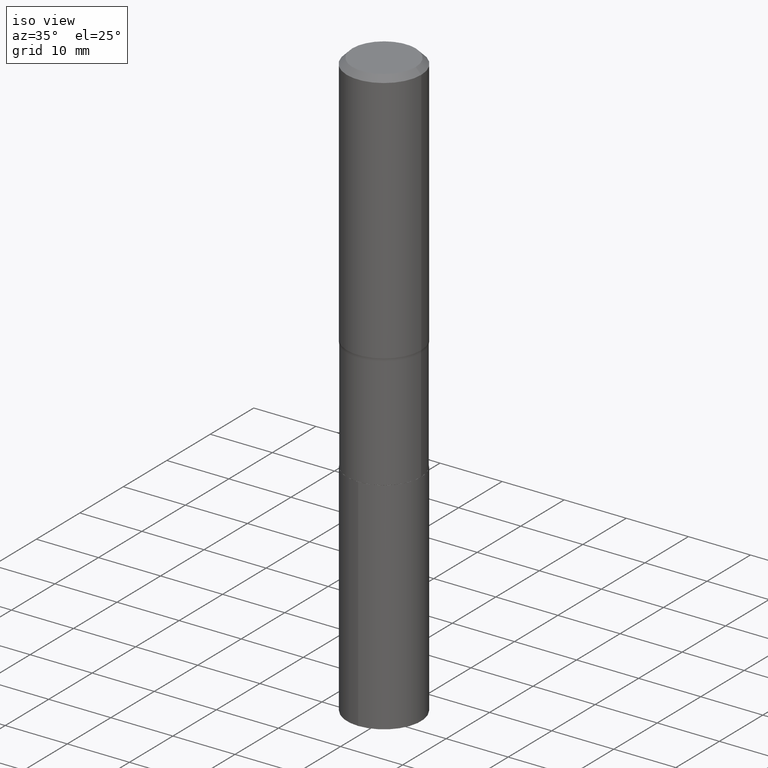
[diagram: clean part render]
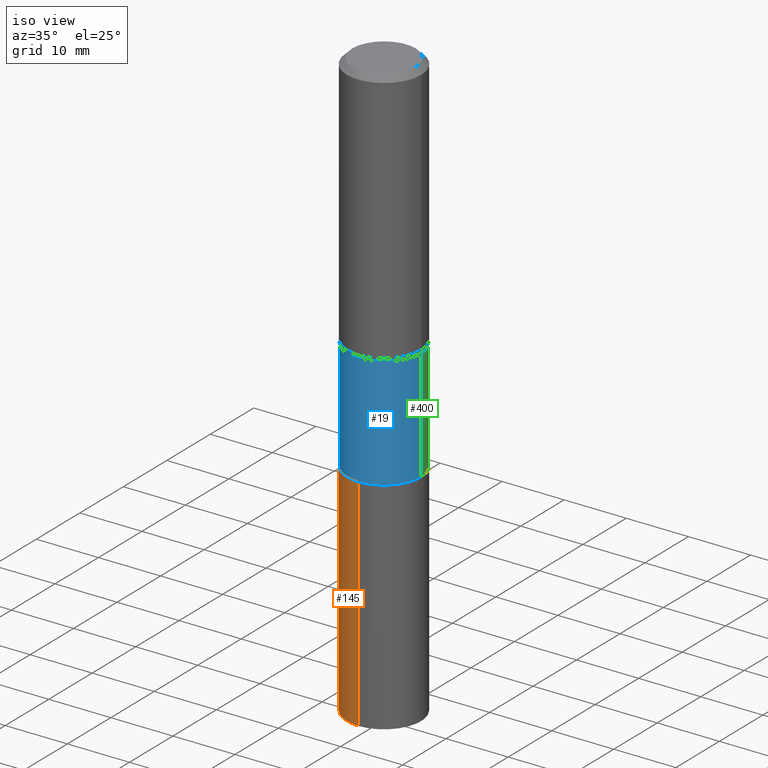
[diagram: same view with three faces highlighted in distinct colors, each labeled with its STEP entity id]
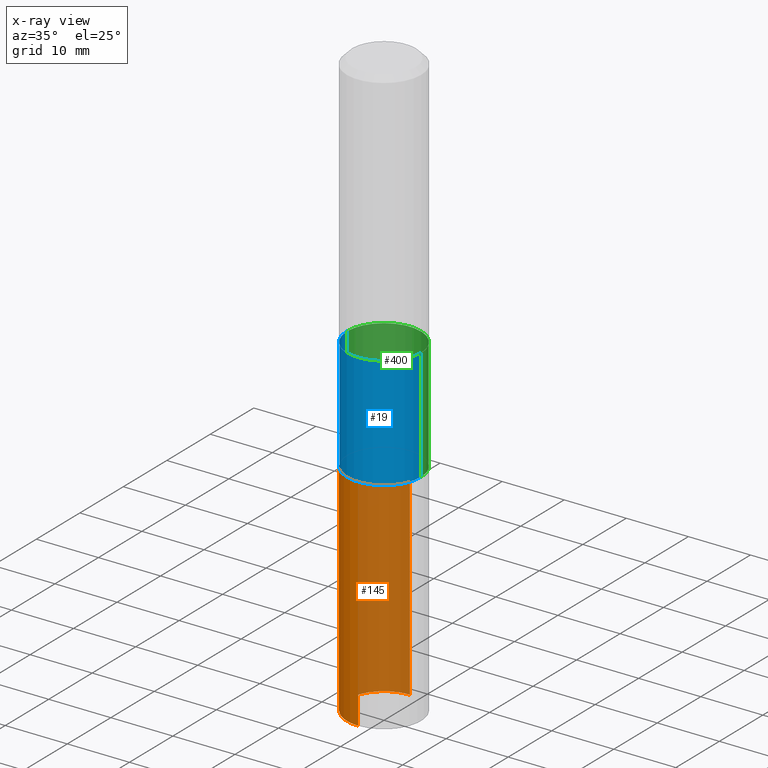
[diagram: x-ray of the same camera — body ghosted, the three highlighted faces saturated]
A machine part, iso view with three faces highlighted in distinct colors.
The next image is the same camera in x-ray (body ghosted, the three faces saturated) — at least one of them is partly hidden behind the body in this view.
Their STEP definitions:

[orange] entity #145 — the highlighted cylindrical surface (partial cylindrical patch) has radius 5.95 mm, axis along (-0, 0, 1).
#10 = VERTEX_POINT ( 'NONE', #191 ) ;
#30 = ORIENTED_EDGE ( 'NONE', *, *, #139, .T. ) ;
#37 = CARTESIAN_POINT ( 'NONE',  ( 1.664446358518108739E-15, 0.2342499999999869686, -3.740200000000001967 ) ) ;
#47 = LINE ( 'NONE', #197, #118 ) ;
#60 = ORIENTED_EDGE ( 'NONE', *, *, #87, .T. ) ;
#67 = ORIENTED_EDGE ( 'NONE', *, *, #451, .F. ) ;
#76 = CARTESIAN_POINT ( 'NONE',  ( 5.725331569040642181E-29, -8.174256110499573321E-15, -2.341200000000000170 ) ) ;
#78 = DIRECTION ( 'NONE',  ( -2.445460202630116151E-29, 3.491493659623618678E-15, 1.000000000000000000 ) ) ;
#87 = EDGE_CURVE ( 'NONE', #283, #10, #47, .T. ) ;
#112 = CARTESIAN_POINT ( 'NONE',  ( 9.146530392520179106E-29, -1.305885574031301935E-14, -3.740200000000001079 ) ) ;
#114 = DIRECTION ( 'NONE',  ( -6.982962677686265133E-15, -1.000000000000000000, 3.498631368620187579E-15 ) ) ;
#118 = VECTOR ( 'NONE', #193, 39.37007874015748143 ) ;
#119 = AXIS2_PLACEMENT_3D ( 'NONE', #76, #270, #199 ) ;
#122 = FACE_OUTER_BOUND ( 'NONE', #160, .T. ) ;
#127 = CIRCLE ( 'NONE', #247, 0.2342500000000000138 ) ;
#128 = CARTESIAN_POINT ( 'NONE',  ( 1.664446358518126094E-15, 0.2342499999999918259, -2.341200000000001058 ) ) ;
#139 = EDGE_CURVE ( 'NONE', #387, #283, #127, .T. ) ;
#145 = ADVANCED_FACE ( 'NONE', ( #122 ), #265, .T. ) ;
#160 = EDGE_LOOP ( 'NONE', ( #364, #30, #60, #67 ) ) ;
#191 = CARTESIAN_POINT ( 'NONE',  ( -1.635759007247950422E-15, -0.2342500000000081739, -2.341199999999999282 ) ) ;
#193 = DIRECTION ( 'NONE',  ( -2.445460202630116431E-29, 3.491493659623618678E-15, 1.000000000000000000 ) ) ;
#197 = CARTESIAN_POINT ( 'NONE',  ( -1.635759007247950422E-15, -0.2342500000000081739, -2.341199999999999282 ) ) ;
#199 = DIRECTION ( 'NONE',  ( -6.982962677686265133E-15, -1.000000000000000000, 3.498631368620187579E-15 ) ) ;
#201 = LINE ( 'NONE', #313, #367 ) ;
#205 = VERTEX_POINT ( 'NONE', #128 ) ;
#239 = CIRCLE ( 'NONE', #312, 0.2342500000000000138 ) ;
#247 = AXIS2_PLACEMENT_3D ( 'NONE', #112, #338, #366 ) ;
#265 = CYLINDRICAL_SURFACE ( 'NONE', #119, 0.2342500000000000138 ) ;
#270 = DIRECTION ( 'NONE',  ( -2.445460202630116151E-29, 3.491493659623618678E-15, 1.000000000000000000 ) ) ;
#280 = EDGE_CURVE ( 'NONE', #387, #205, #201, .T. ) ;
#283 = VERTEX_POINT ( 'NONE', #347 ) ;
#312 = AXIS2_PLACEMENT_3D ( 'NONE', #403, #78, #114 ) ;
#313 = CARTESIAN_POINT ( 'NONE',  ( 1.664446358518091778E-15, 0.2342499999999918259, -2.341200000000001058 ) ) ;
#338 = DIRECTION ( 'NONE',  ( -2.445460202630116151E-29, 3.491493659623618678E-15, 1.000000000000000000 ) ) ;
#347 = CARTESIAN_POINT ( 'NONE',  ( -1.635759007247916303E-15, -0.2342500000000130589, -3.740200000000000635 ) ) ;
#364 = ORIENTED_EDGE ( 'NONE', *, *, #280, .F. ) ;
#366 = DIRECTION ( 'NONE',  ( -6.982962677686265133E-15, -1.000000000000000000, 2.332420912413458386E-15 ) ) ;
#367 = VECTOR ( 'NONE', #458, 39.37007874015748143 ) ;
#387 = VERTEX_POINT ( 'NONE', #37 ) ;
#403 = CARTESIAN_POINT ( 'NONE',  ( 5.725331569040642181E-29, -8.174256110499573321E-15, -2.341200000000000170 ) ) ;
#451 = EDGE_CURVE ( 'NONE', #205, #10, #239, .T. ) ;
#458 = DIRECTION ( 'NONE',  ( -2.445460202630116431E-29, 3.491493659623618678E-15, 1.000000000000000000 ) ) ;

[blue] entity #19 — the highlighted cylindrical surface (partial cylindrical patch) has radius 5.9499 mm, axis along (-0, 0, 1).
#1 = DIRECTION ( 'NONE',  ( 1.000000000000000000, -6.982962677686263555E-15, 0.000000000000000000 ) ) ;
#9 = AXIS2_PLACEMENT_3D ( 'NONE', #321, #107, #1 ) ;
#13 = LINE ( 'NONE', #305, #391 ) ;
#19 = ADVANCED_FACE ( 'NONE', ( #297 ), #369, .T. ) ;
#33 = CIRCLE ( 'NONE', #9, 0.2342499999999999027 ) ;
#52 = DIRECTION ( 'NONE',  ( -2.445468806185136597E-29, 3.491481338843145583E-15, 1.000000000000000000 ) ) ;
#63 = CARTESIAN_POINT ( 'NONE',  ( -0.2342499999999999027, -5.268937284156683709E-15, -1.630900000000000016 ) ) ;
#71 = CARTESIAN_POINT ( 'NONE',  ( -0.2342500000000000415, -5.268937284156683709E-15, -2.340700000000000447 ) ) ;
#94 = CIRCLE ( 'NONE', #423, 0.2342500000000000138 ) ;
#107 = DIRECTION ( 'NONE',  ( -2.445468806185136597E-29, 3.491481338843145583E-15, 1.000000000000000000 ) ) ;
#109 = VECTOR ( 'NONE', #356, 39.37007874015748143 ) ;
#130 = EDGE_CURVE ( 'NONE', #439, #210, #13, .T. ) ;
#131 = CARTESIAN_POINT ( 'NONE',  ( 0.2342500000000000138, -9.808269377078159037E-15, -2.340700000000000447 ) ) ;
#148 = ORIENTED_EDGE ( 'NONE', *, *, #386, .F. ) ;
#156 = CARTESIAN_POINT ( 'NONE',  ( 0.000000000000000000, 0.000000000000000000, 0.000000000000000000 ) ) ;
#179 = LINE ( 'NONE', #427, #109 ) ;
#210 = VERTEX_POINT ( 'NONE', #63 ) ;
#242 = ORIENTED_EDGE ( 'NONE', *, *, #130, .F. ) ;
#249 = DIRECTION ( 'NONE',  ( -2.445468806185136597E-29, 3.491481338843145583E-15, 1.000000000000000000 ) ) ;
#257 = DIRECTION ( 'NONE',  ( 1.000000000000000000, -6.982962677686266711E-15, 4.876176775795935793E-29 ) ) ;
#281 = VERTEX_POINT ( 'NONE', #131 ) ;
#282 = CARTESIAN_POINT ( 'NONE',  ( 5.724108834637550500E-29, -8.172510369830151029E-15, -2.340700000000000447 ) ) ;
#284 = AXIS2_PLACEMENT_3D ( 'NONE', #156, #52, #257 ) ;
#287 = DIRECTION ( 'NONE',  ( 1.000000000000000000, -6.982962677686265133E-15, 0.000000000000000000 ) ) ;
#297 = FACE_OUTER_BOUND ( 'NONE', #355, .T. ) ;
#305 = CARTESIAN_POINT ( 'NONE',  ( -0.2342499999999999583, 1.664446358518034389E-15, -1.152260544892211521E-29 ) ) ;
#321 = CARTESIAN_POINT ( 'NONE',  ( 3.988315076007339561E-29, -5.694256915519285955E-15, -1.630900000000000016 ) ) ;
#325 = ORIENTED_EDGE ( 'NONE', *, *, #378, .T. ) ;
#333 = EDGE_CURVE ( 'NONE', #439, #281, #94, .T. ) ;
#355 = EDGE_LOOP ( 'NONE', ( #242, #420, #325, #148 ) ) ;
#356 = DIRECTION ( 'NONE',  ( -2.445468806185136877E-29, 3.491481338843145188E-15, 1.000000000000000000 ) ) ;
#369 = CYLINDRICAL_SURFACE ( 'NONE', #284, 0.2342499999999999583 ) ;
#378 = EDGE_CURVE ( 'NONE', #281, #382, #179, .T. ) ;
#382 = VERTEX_POINT ( 'NONE', #434 ) ;
#386 = EDGE_CURVE ( 'NONE', #210, #382, #33, .T. ) ;
#391 = VECTOR ( 'NONE', #409, 39.37007874015748143 ) ;
#409 = DIRECTION ( 'NONE',  ( -2.445468806185136877E-29, 3.491481338843145188E-15, 1.000000000000000000 ) ) ;
#420 = ORIENTED_EDGE ( 'NONE', *, *, #333, .T. ) ;
#423 = AXIS2_PLACEMENT_3D ( 'NONE', #282, #249, #287 ) ;
#427 = CARTESIAN_POINT ( 'NONE',  ( 0.2342499999999999583, -1.635759007248007614E-15, 1.142244409730197744E-29 ) ) ;
#434 = CARTESIAN_POINT ( 'NONE',  ( 0.2342499999999999027, -7.330015922767293174E-15, -1.630900000000000016 ) ) ;
#439 = VERTEX_POINT ( 'NONE', #71 ) ;

[green] entity #400 — the highlighted cylindrical surface (partial cylindrical patch) has radius 5.9499 mm, axis along (-0, 0, 1).
#13 = LINE ( 'NONE', #305, #391 ) ;
#16 = ORIENTED_EDGE ( 'NONE', *, *, #272, .F. ) ;
#45 = CARTESIAN_POINT ( 'NONE',  ( 5.724108834637550500E-29, -8.172510369830151029E-15, -2.340700000000000447 ) ) ;
#57 = CARTESIAN_POINT ( 'NONE',  ( 3.988315076007339561E-29, -5.694256915519285955E-15, -1.630900000000000016 ) ) ;
#63 = CARTESIAN_POINT ( 'NONE',  ( -0.2342499999999999027, -5.268937284156683709E-15, -1.630900000000000016 ) ) ;
#71 = CARTESIAN_POINT ( 'NONE',  ( -0.2342500000000000415, -5.268937284156683709E-15, -2.340700000000000447 ) ) ;
#72 = FACE_OUTER_BOUND ( 'NONE', #85, .T. ) ;
#85 = EDGE_LOOP ( 'NONE', ( #125, #278, #16, #460 ) ) ;
#90 = EDGE_CURVE ( 'NONE', #281, #439, #203, .T. ) ;
#99 = DIRECTION ( 'NONE',  ( 1.000000000000000000, -6.982962677686266711E-15, 4.876176775795935793E-29 ) ) ;
#109 = VECTOR ( 'NONE', #356, 39.37007874015748143 ) ;
#125 = ORIENTED_EDGE ( 'NONE', *, *, #90, .T. ) ;
#130 = EDGE_CURVE ( 'NONE', #439, #210, #13, .T. ) ;
#131 = CARTESIAN_POINT ( 'NONE',  ( 0.2342500000000000138, -9.808269377078159037E-15, -2.340700000000000447 ) ) ;
#134 = DIRECTION ( 'NONE',  ( 1.000000000000000000, -6.982962677686263555E-15, 0.000000000000000000 ) ) ;
#166 = AXIS2_PLACEMENT_3D ( 'NONE', #388, #279, #99 ) ;
#179 = LINE ( 'NONE', #427, #109 ) ;
#203 = CIRCLE ( 'NONE', #328, 0.2342500000000000138 ) ;
#210 = VERTEX_POINT ( 'NONE', #63 ) ;
#243 = CYLINDRICAL_SURFACE ( 'NONE', #166, 0.2342499999999999583 ) ;
#272 = EDGE_CURVE ( 'NONE', #382, #210, #346, .T. ) ;
#278 = ORIENTED_EDGE ( 'NONE', *, *, #130, .T. ) ;
#279 = DIRECTION ( 'NONE',  ( -2.445468806185136597E-29, 3.491481338843145583E-15, 1.000000000000000000 ) ) ;
#281 = VERTEX_POINT ( 'NONE', #131 ) ;
#305 = CARTESIAN_POINT ( 'NONE',  ( -0.2342499999999999583, 1.664446358518034389E-15, -1.152260544892211521E-29 ) ) ;
#308 = DIRECTION ( 'NONE',  ( 1.000000000000000000, -6.982962677686265133E-15, 0.000000000000000000 ) ) ;
#317 = DIRECTION ( 'NONE',  ( -2.445468806185136597E-29, 3.491481338843145583E-15, 1.000000000000000000 ) ) ;
#328 = AXIS2_PLACEMENT_3D ( 'NONE', #45, #341, #308 ) ;
#341 = DIRECTION ( 'NONE',  ( -2.445468806185136597E-29, 3.491481338843145583E-15, 1.000000000000000000 ) ) ;
#346 = CIRCLE ( 'NONE', #360, 0.2342499999999999027 ) ;
#356 = DIRECTION ( 'NONE',  ( -2.445468806185136877E-29, 3.491481338843145188E-15, 1.000000000000000000 ) ) ;
#360 = AXIS2_PLACEMENT_3D ( 'NONE', #57, #317, #134 ) ;
#378 = EDGE_CURVE ( 'NONE', #281, #382, #179, .T. ) ;
#382 = VERTEX_POINT ( 'NONE', #434 ) ;
#388 = CARTESIAN_POINT ( 'NONE',  ( 0.000000000000000000, 0.000000000000000000, 0.000000000000000000 ) ) ;
#391 = VECTOR ( 'NONE', #409, 39.37007874015748143 ) ;
#400 = ADVANCED_FACE ( 'NONE', ( #72 ), #243, .T. ) ;
#409 = DIRECTION ( 'NONE',  ( -2.445468806185136877E-29, 3.491481338843145188E-15, 1.000000000000000000 ) ) ;
#427 = CARTESIAN_POINT ( 'NONE',  ( 0.2342499999999999583, -1.635759007248007614E-15, 1.142244409730197744E-29 ) ) ;
#434 = CARTESIAN_POINT ( 'NONE',  ( 0.2342499999999999027, -7.330015922767293174E-15, -1.630900000000000016 ) ) ;
#439 = VERTEX_POINT ( 'NONE', #71 ) ;
#460 = ORIENTED_EDGE ( 'NONE', *, *, #378, .F. ) ;